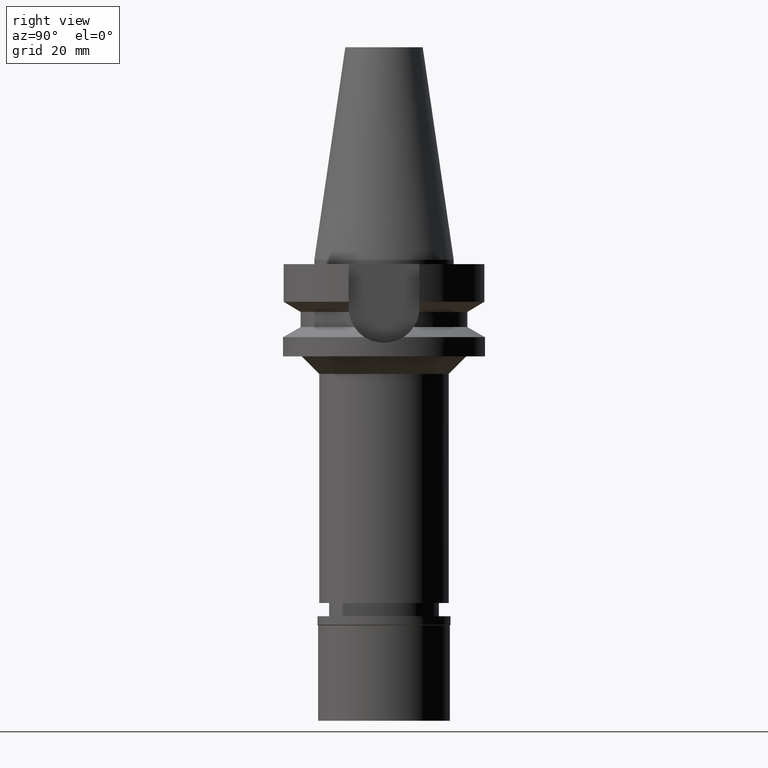
[diagram: clean part render]
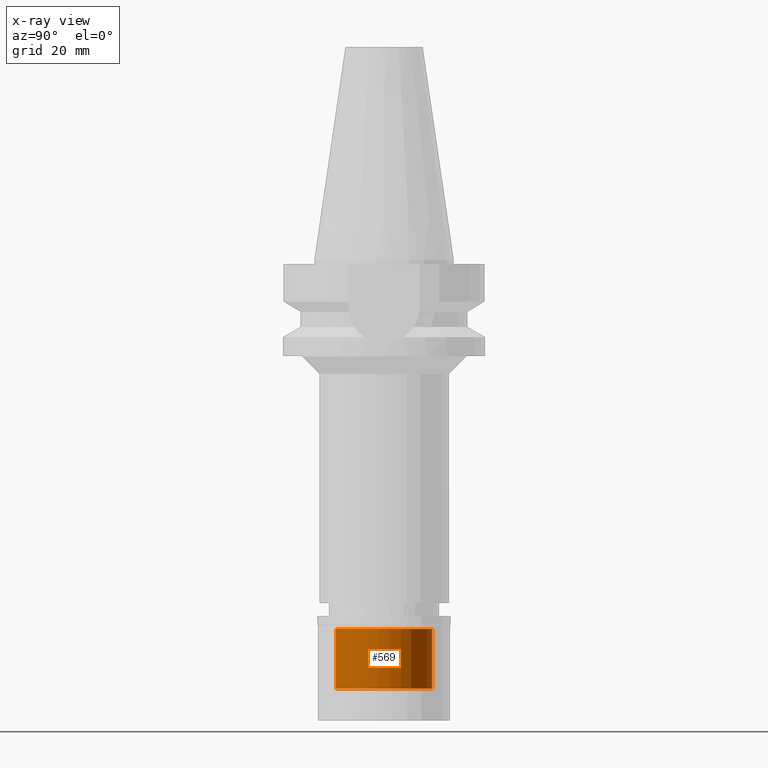
[diagram: x-ray — body ghosted, one internal face saturated and labeled with its STEP entity id]
A machine part, right view, then the same camera in x-ray: the body is ghosted and one INTERNAL B-rep face — a face not visible from any outside direction — is saturated and labeled: STEP entity #569.
In plain terms, the highlighted cylindrical surface (partial cylindrical patch) has radius 11 mm, axis along (0, 0, -1).
Its self-contained STEP definition (entity closure, byte-faithful):
#41 = CARTESIAN_POINT ( 'NONE',  ( 0.0000000000000000000, 11.00000000000000000, -16.50000000000000000 ) ) ;
#90 = EDGE_CURVE ( 'NONE', #748, #2881, #886, .T. ) ;
#118 = DIRECTION ( 'NONE',  ( 0.0000000000000000000, -1.000000000000000000, 0.0000000000000000000 ) ) ;
#180 = ORIENTED_EDGE ( 'NONE', *, *, #1240, .F. ) ;
#208 = AXIS2_PLACEMENT_3D ( 'NONE', #1897, #1884, #1478 ) ;
#271 = DIRECTION ( 'NONE',  ( 0.0000000000000000000, 0.0000000000000000000, -1.000000000000000000 ) ) ;
#382 = LINE ( 'NONE', #2603, #1151 ) ;
#431 = EDGE_CURVE ( 'NONE', #2122, #748, #2759, .T. ) ;
#453 = EDGE_CURVE ( 'NONE', #2881, #2252, #2234, .T. ) ;
#471 = ORIENTED_EDGE ( 'NONE', *, *, #90, .T. ) ;
#569 = ADVANCED_FACE ( 'NONE', ( #2402 ), #1707, .F. ) ;
#590 = AXIS2_PLACEMENT_3D ( 'NONE', #2594, #2565, #118 ) ;
#748 = VERTEX_POINT ( 'NONE', #2878 ) ;
#779 = ORIENTED_EDGE ( 'NONE', *, *, #431, .T. ) ;
#786 = AXIS2_PLACEMENT_3D ( 'NONE', #2298, #271, #1174 ) ;
#833 = CARTESIAN_POINT ( 'NONE',  ( 0.0000000000000000000, 11.00000000000000000, -2.899999999999999911 ) ) ;
#886 = LINE ( 'NONE', #1556, #1668 ) ;
#1151 = VECTOR ( 'NONE', #1978, 1000.000000000000000 ) ;
#1174 = DIRECTION ( 'NONE',  ( 0.0000000000000000000, 1.000000000000000000, 0.0000000000000000000 ) ) ;
#1192 = ORIENTED_EDGE ( 'NONE', *, *, #453, .T. ) ;
#1240 = EDGE_CURVE ( 'NONE', #2122, #2252, #382, .T. ) ;
#1259 = CARTESIAN_POINT ( 'NONE',  ( 0.0000000000000000000, -11.00000000000000000, -2.899999999999999911 ) ) ;
#1478 = DIRECTION ( 'NONE',  ( 0.0000000000000000000, -1.000000000000000000, 0.0000000000000000000 ) ) ;
#1556 = CARTESIAN_POINT ( 'NONE',  ( 0.0000000000000000000, -11.00000000000000000, -16.50000000000000000 ) ) ;
#1668 = VECTOR ( 'NONE', #2032, 1000.000000000000000 ) ;
#1707 = CYLINDRICAL_SURFACE ( 'NONE', #208, 11.00000000000000000 ) ;
#1884 = DIRECTION ( 'NONE',  ( 0.0000000000000000000, 0.0000000000000000000, -1.000000000000000000 ) ) ;
#1897 = CARTESIAN_POINT ( 'NONE',  ( 0.0000000000000000000, 0.0000000000000000000, 0.0000000000000000000 ) ) ;
#1978 = DIRECTION ( 'NONE',  ( 0.0000000000000000000, 0.0000000000000000000, 1.000000000000000000 ) ) ;
#2032 = DIRECTION ( 'NONE',  ( 0.0000000000000000000, 0.0000000000000000000, 1.000000000000000000 ) ) ;
#2122 = VERTEX_POINT ( 'NONE', #41 ) ;
#2234 = CIRCLE ( 'NONE', #590, 11.00000000000000000 ) ;
#2252 = VERTEX_POINT ( 'NONE', #833 ) ;
#2298 = CARTESIAN_POINT ( 'NONE',  ( 0.0000000000000000000, 0.0000000000000000000, -16.50000000000000000 ) ) ;
#2301 = EDGE_LOOP ( 'NONE', ( #779, #471, #1192, #180 ) ) ;
#2402 = FACE_OUTER_BOUND ( 'NONE', #2301, .T. ) ;
#2565 = DIRECTION ( 'NONE',  ( 0.0000000000000000000, 0.0000000000000000000, 1.000000000000000000 ) ) ;
#2594 = CARTESIAN_POINT ( 'NONE',  ( 0.0000000000000000000, 0.0000000000000000000, -2.899999999999999911 ) ) ;
#2603 = CARTESIAN_POINT ( 'NONE',  ( 0.0000000000000000000, 11.00000000000000000, -16.50000000000000000 ) ) ;
#2759 = CIRCLE ( 'NONE', #786, 11.00000000000000000 ) ;
#2878 = CARTESIAN_POINT ( 'NONE',  ( 0.0000000000000000000, -11.00000000000000000, -16.50000000000000000 ) ) ;
#2881 = VERTEX_POINT ( 'NONE', #1259 ) ;